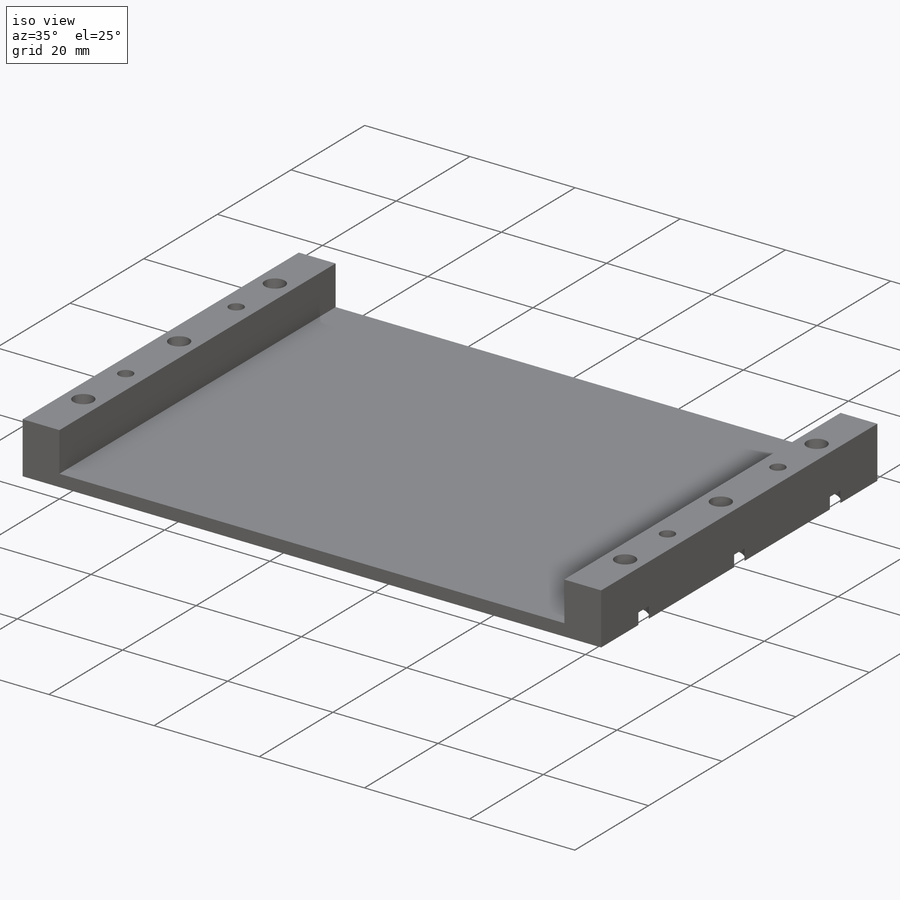
[diagram: iso view]
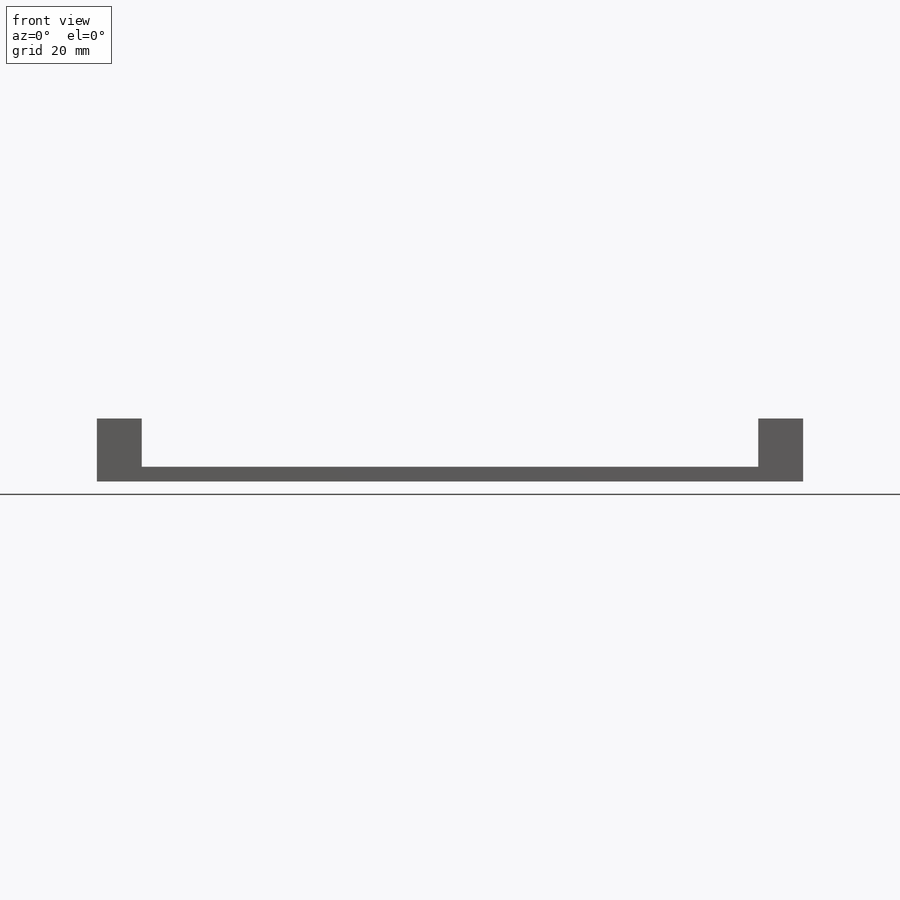
[diagram: front view]
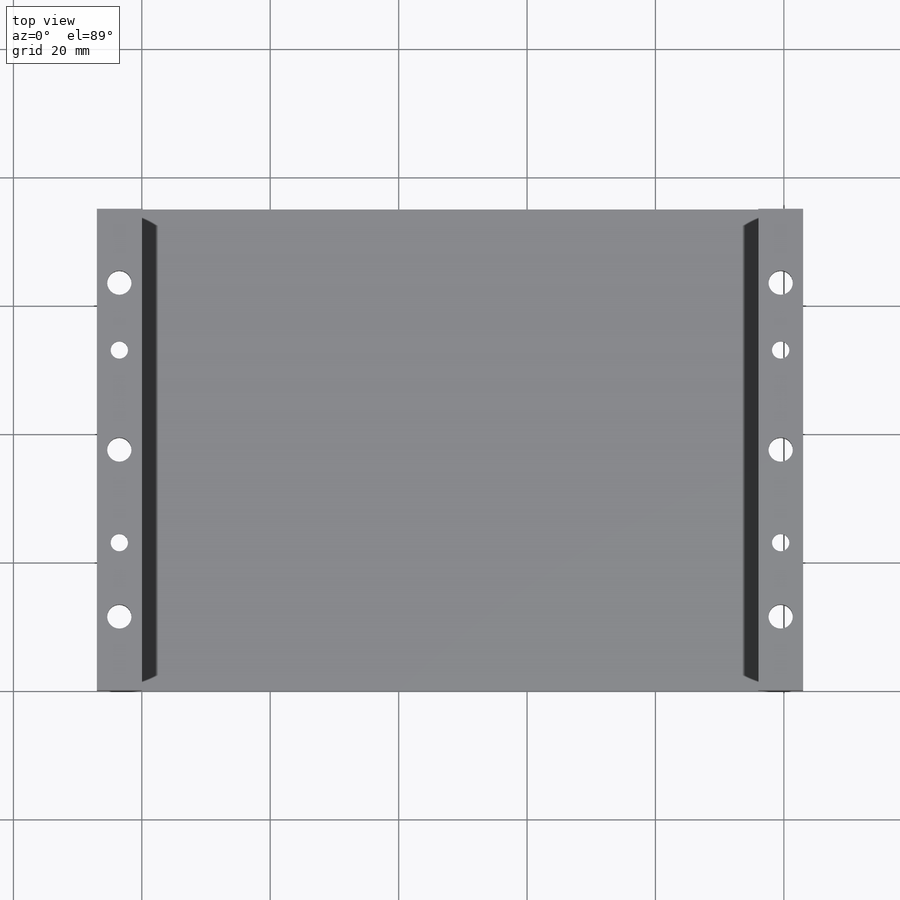
[diagram: top view]
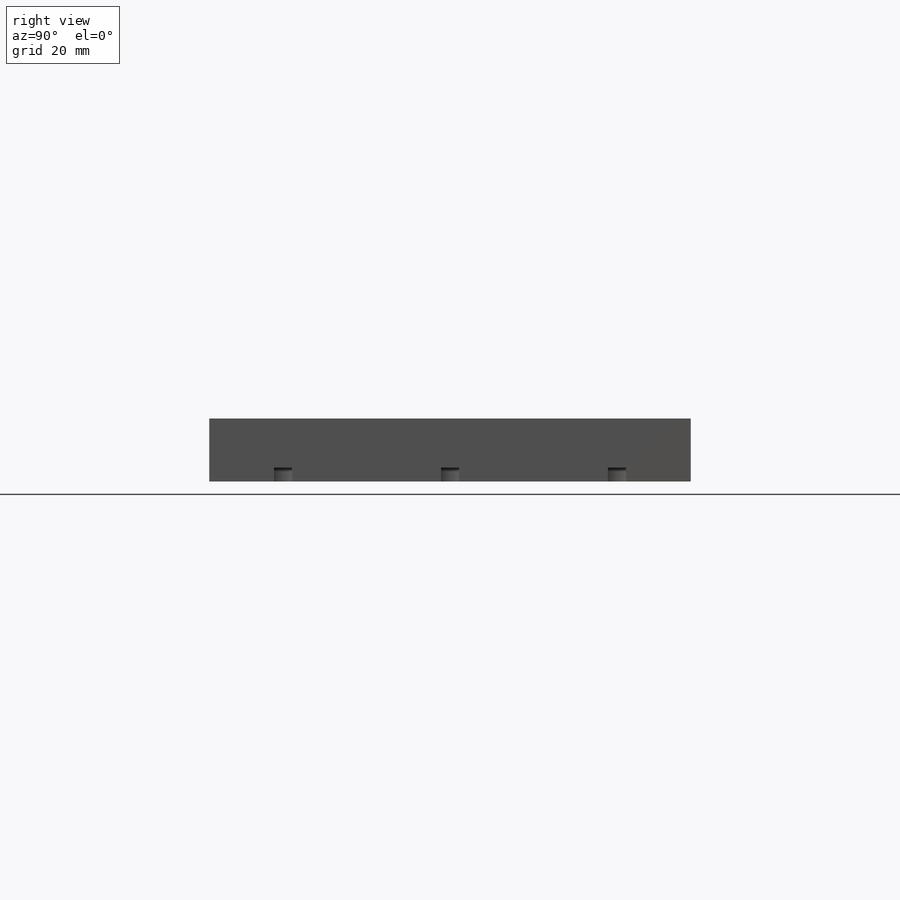
[diagram: right view]
SOLIDWORKS PART (.sldprt)
format: sldprt  version: not decoded by parser v0  size: 282,624 bytes
history: native  units: mm
features: sketch x7, extrude x3, hole x2, material x1, plane x1 (+13 scaffold rows collapsed)
feature tree (27):
  scaffold x13  (default folders/planes/origin — collapsed)
  material  "Material <not specified>"
  sketch  "Sketch1"  dims[D1=96.0mm D2=75.0mm]
  extrude  "Boss-Extrude1"  Depth=2.3mm
  plane  "center-of-slot"
  sketch  "Sketch2"  dims[D1=7.0mm]
  extrude  "Boss-Extrude2"  Depth=7.5mm
  sketch  "Sketch3"
  extrude  "Boss-Extrude3"  [1 undecoded]
  hole  "#6-32 Tapped Hole1"  Diameter=2.7051mm Depth=9.800025mm
  sketch  "Sketch5"  dims[c1.D1=3.5mm c1.D2=~3.810081mm c2.D2=90.0deg c3.D2=23.0mm c3.D3=22.0mm c3.D4=3.5mm]
  sketch  "Sketch4"  dims[hole-wizard template sketch: 41 standard entries collapsed; hole parameters kept: c12.Thru Tap Drill Dia.=2.7051mm c12.Thru Tap Drill Depth=~9.800025mm c12.Thread Major Dia.=3.5052mm c12.Thread Depth=7.01mm]
  hole  "CBORE for #6 Button Head Cap Screw1"  Diameter=3.7973mm Depth=9.800025mm
  sketch  "Sketch7"  dims[D1=26.0mm]
  sketch  "Sketch6"  dims[hole-wizard template sketch: 42 standard entries collapsed; hole parameters kept: c12.Thru Hole Depth=~9.800025mm c12.C'Bore Dia.=~7.54126mm c12.C'Bore Depth=~2.154199mm]
decode coverage: 10 of 12 modeling features carry decoded parameters
note: ~ marks probable driven/reference dimensions
note: 1 parameter value undecoded
note: suppression state not decoded; provenance and decode notes live in map.json
